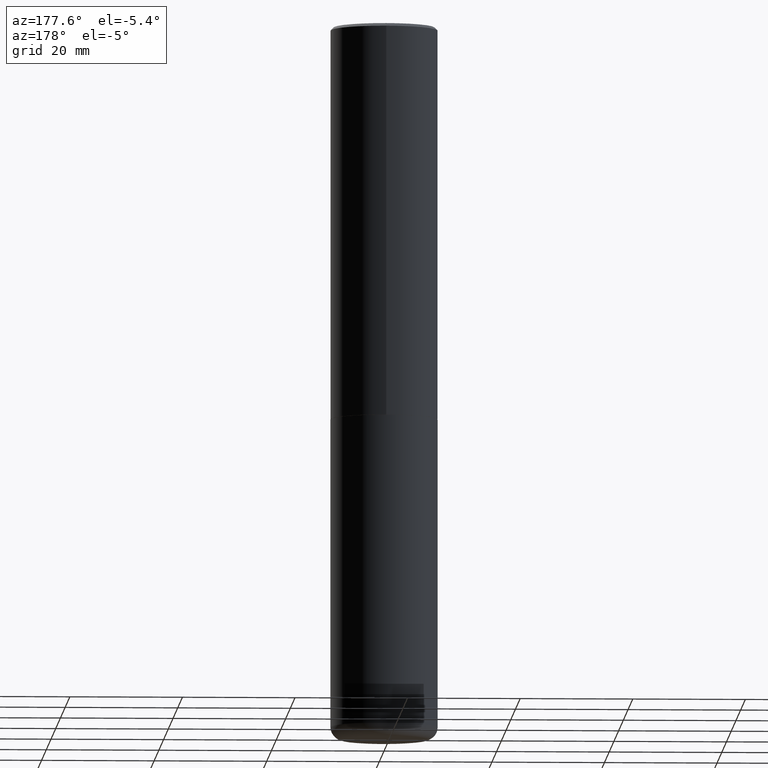
[diagram: clean part render]
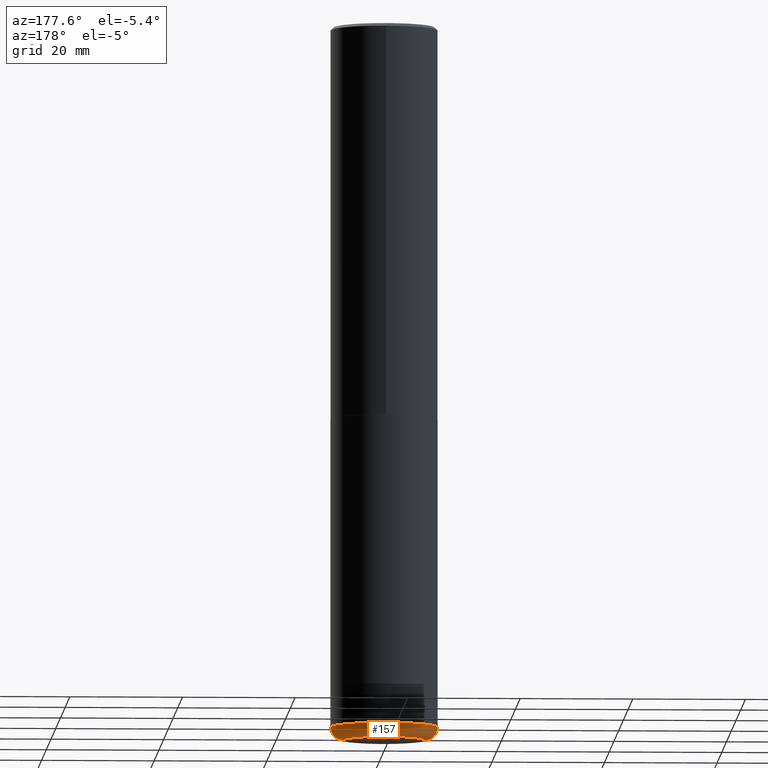
[diagram: same view with one face highlighted and labeled with its STEP entity id]
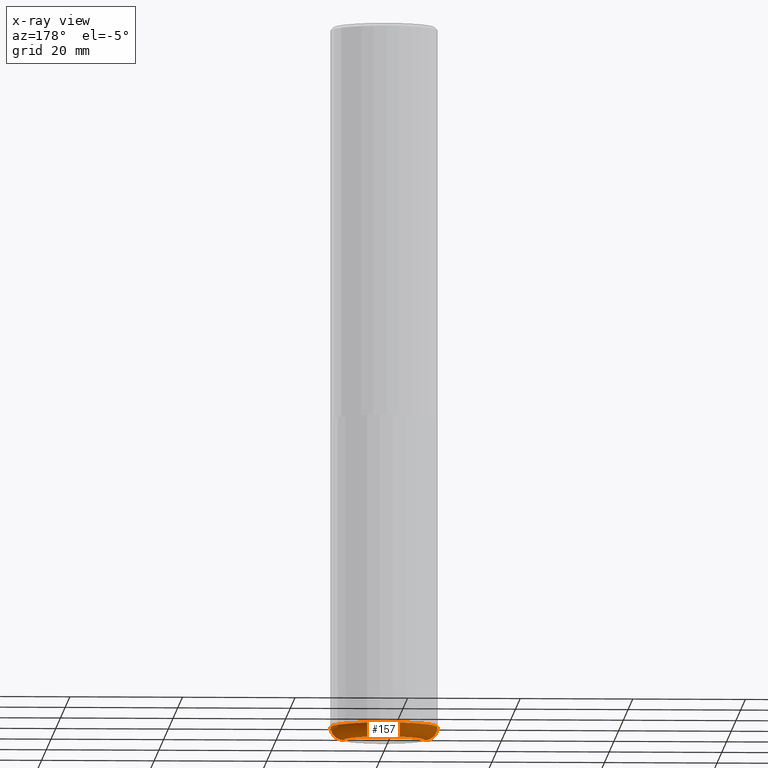
[diagram: x-ray of the same camera — body ghosted, the highlighted face saturated]
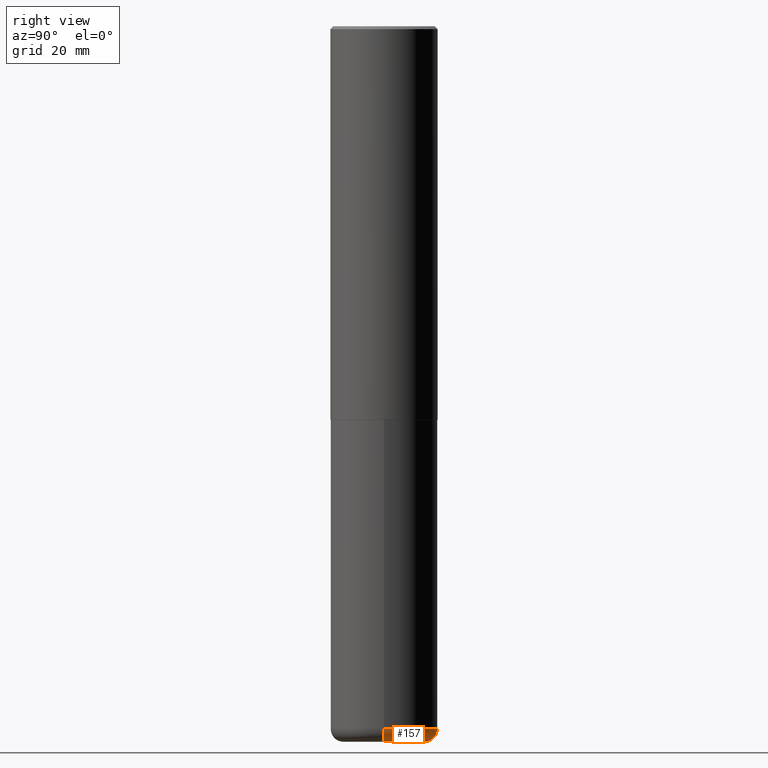
[diagram: same view with one face highlighted and labeled with its STEP entity id]
A machine part, auxiliary view. The second image highlights one B-rep face of the part: STEP entity #157.
The next image is the same camera in x-ray: the body ghosted, the highlighted face saturated — about 0% of this face is hidden behind the body in this view.
A second angle (right view) of the same face is appended — the face is thin or edge-on in the first view.
In plain terms, the highlighted toroidal blend (fillet) surface has major radius 7.239 mm and minor (blend) radius 2.286 mm.
Its self-contained STEP definition (entity closure, byte-faithful):
#11 = CARTESIAN_POINT ( 'NONE',  ( 0.2850000000000000311, -1.944755105735631653E-14, -5.000000000000000000 ) ) ;
#22 = DIRECTION ( 'NONE',  ( -6.982962677686266711E-15, -1.000000000000000000, 3.491481338843145583E-15 ) ) ;
#30 = AXIS2_PLACEMENT_3D ( 'NONE', #89, #182, #50 ) ;
#35 = ORIENTED_EDGE ( 'NONE', *, *, #121, .F. ) ;
#43 = DIRECTION ( 'NONE',  ( -2.445468806185136597E-29, 3.491481338843145583E-15, 1.000000000000000000 ) ) ;
#50 = DIRECTION ( 'NONE',  ( 1.000000000000000000, -6.982962677686269077E-15, 0.000000000000000000 ) ) ;
#52 = CARTESIAN_POINT ( 'NONE',  ( 1.200725183836902132E-28, -1.714317337371984662E-14, -4.910000000000000142 ) ) ;
#61 = VERTEX_POINT ( 'NONE', #11 ) ;
#62 = VERTEX_POINT ( 'NONE', #170 ) ;
#74 = AXIS2_PLACEMENT_3D ( 'NONE', #258, #383, #289 ) ;
#83 = DIRECTION ( 'NONE',  ( 1.000000000000000000, -6.982962677686273810E-15, 0.000000000000000000 ) ) ;
#88 = EDGE_CURVE ( 'NONE', #61, #416, #290, .T. ) ;
#89 = CARTESIAN_POINT ( 'NONE',  ( 1.200725183836902132E-28, -1.714317337371984662E-14, -4.910000000000000142 ) ) ;
#95 = CIRCLE ( 'NONE', #30, 0.3749999999999999445 ) ;
#99 = ORIENTED_EDGE ( 'NONE', *, *, #205, .F. ) ;
#119 = DIRECTION ( 'NONE',  ( 1.000000000000000000, -6.982962677686266711E-15, 0.000000000000000000 ) ) ;
#121 = EDGE_CURVE ( 'NONE', #277, #62, #95, .T. ) ;
#138 = AXIS2_PLACEMENT_3D ( 'NONE', #148, #314, #119 ) ;
#146 = AXIS2_PLACEMENT_3D ( 'NONE', #52, #43, #185 ) ;
#148 = CARTESIAN_POINT ( 'NONE',  ( 1.222734403092568523E-28, -1.745740669421572989E-14, -5.000000000000000000 ) ) ;
#157 = ADVANCED_FACE ( 'NONE', ( #222 ), #415, .T. ) ;
#170 = CARTESIAN_POINT ( 'NONE',  ( -0.3749999999999999445, -1.447863811461947092E-14, -4.910000000000000142 ) ) ;
#182 = DIRECTION ( 'NONE',  ( -2.445468806185136597E-29, 3.491481338843145583E-15, 1.000000000000000000 ) ) ;
#185 = DIRECTION ( 'NONE',  ( 1.000000000000000000, -6.982962677686269077E-15, 4.883557194083113462E-29 ) ) ;
#186 = CARTESIAN_POINT ( 'NONE',  ( 0.2850000000000000311, -1.913331773686043011E-14, -4.910000000000000142 ) ) ;
#202 = CIRCLE ( 'NONE', #310, 0.08999999999999992728 ) ;
#205 = EDGE_CURVE ( 'NONE', #61, #277, #202, .T. ) ;
#207 = ORIENTED_EDGE ( 'NONE', *, *, #398, .T. ) ;
#209 = CIRCLE ( 'NONE', #74, 0.08999999999999992728 ) ;
#222 = FACE_OUTER_BOUND ( 'NONE', #330, .T. ) ;
#223 = ORIENTED_EDGE ( 'NONE', *, *, #88, .T. ) ;
#258 = CARTESIAN_POINT ( 'NONE',  ( -0.2850000000000000311, -1.511812657680356008E-14, -4.910000000000000142 ) ) ;
#277 = VERTEX_POINT ( 'NONE', #349 ) ;
#289 = DIRECTION ( 'NONE',  ( -1.000000000000000000, 7.105427357600996337E-15, 0.000000000000000000 ) ) ;
#290 = CIRCLE ( 'NONE', #138, 0.2850000000000000311 ) ;
#310 = AXIS2_PLACEMENT_3D ( 'NONE', #186, #22, #83 ) ;
#314 = DIRECTION ( 'NONE',  ( -2.445468806185136597E-29, 3.491481338843145583E-15, 1.000000000000000000 ) ) ;
#330 = EDGE_LOOP ( 'NONE', ( #223, #207, #35, #99 ) ) ;
#349 = CARTESIAN_POINT ( 'NONE',  ( 0.3749999999999999445, -1.976178437785219664E-14, -4.910000000000000142 ) ) ;
#383 = DIRECTION ( 'NONE',  ( 7.105427357601001859E-15, 1.000000000000000000, -3.491481338843145583E-15 ) ) ;
#398 = EDGE_CURVE ( 'NONE', #416, #62, #209, .T. ) ;
#415 = TOROIDAL_SURFACE ( 'NONE', #146, 0.2850000000000000311, 0.08999999999999989952 ) ;
#416 = VERTEX_POINT ( 'NONE', #418 ) ;
#418 = CARTESIAN_POINT ( 'NONE',  ( -0.2850000000000000311, -1.495549900595945556E-14, -5.000000000000000000 ) ) ;